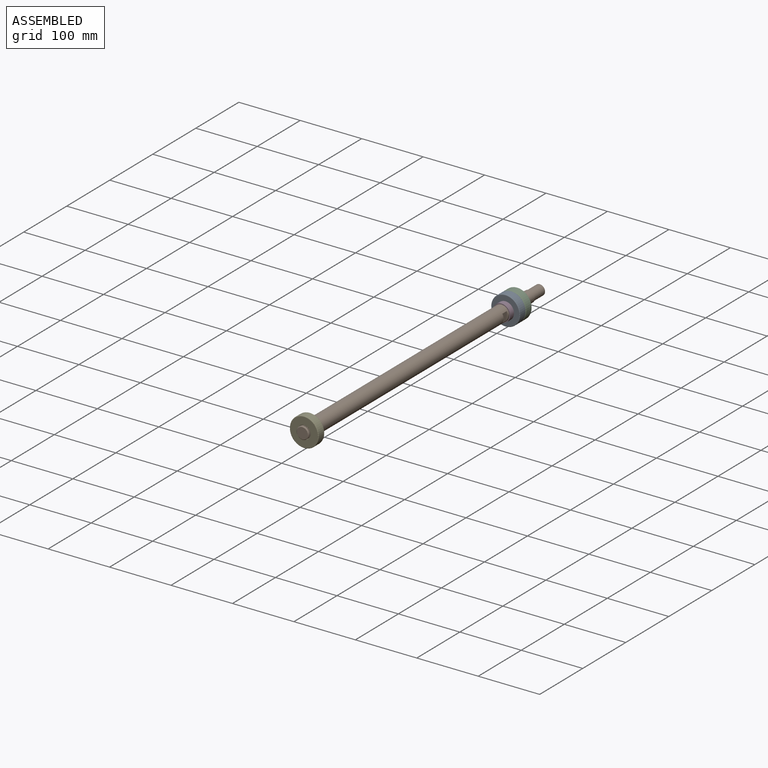
[diagram: assembled view]
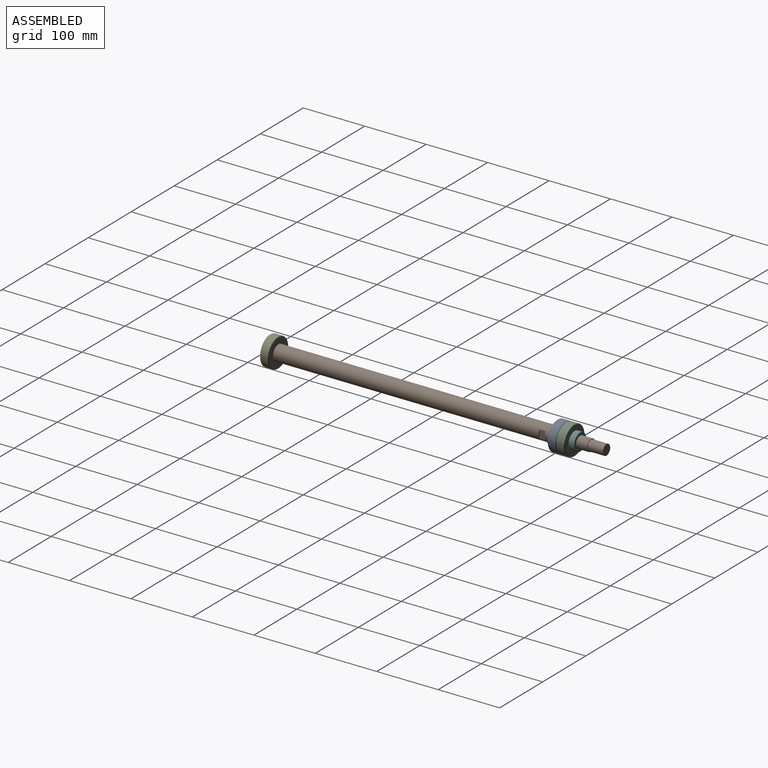
[diagram: assembled view, second angle]
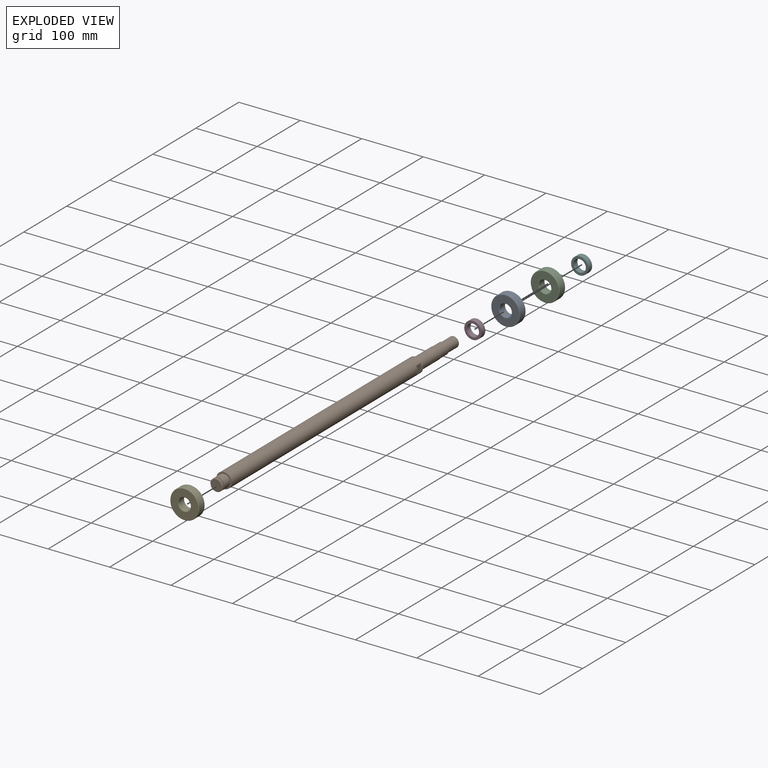
[diagram: exploded view]
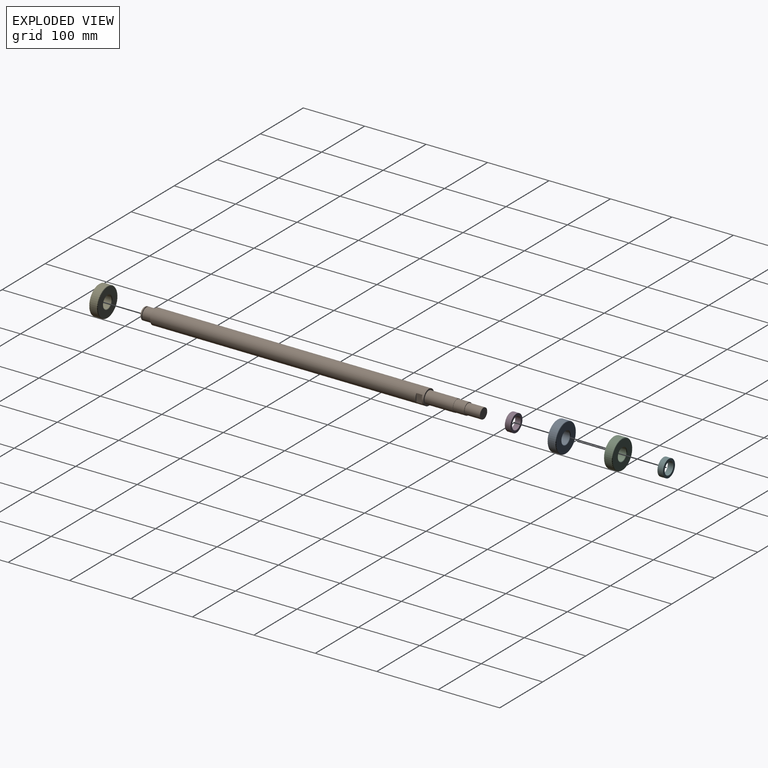
[diagram: exploded view, second angle]
ASSEMBLY  parts=6 mates=5
PART A: 8 faces, bbox 50.9x14x50.9 mm
  f0: cylinder r=10mm len=20mm, axis (0,1,0), area 754mm2, adj f4,f6
  f1: cylinder r=23.5mm len=47mm, axis (0,1,0), area 1771.9mm2, adj f5,f7
  f2: plane 45x45mm, normal (0,-1,0), area 1210.3mm2, adj f6,f7
  f3: plane 45x45mm, normal (0,1,0), area 1210.3mm2, adj f4,f5
  f4: torus R=11mm, axis (0,-1,0), area 102.3mm2, adj f0,f3
  f5: torus R=22.5mm, axis (0,-1,0), area 228.3mm2, adj f1,f3
  f6: torus R=11mm, axis (0,-1,0), area 102.3mm2, adj f0,f2
  f7: torus R=22.5mm, axis (0,-1,0), area 228.3mm2, adj f1,f2
PART B: 22 faces, bbox 25x552x25 mm
  f0: cylinder r=12.5mm len=445mm, axis (0,1,0), area 34663.5mm2, adj f7,f8,f16,f17,f18,f19,f20,f21
  f1: plane 17x17mm, normal (0,1,0), area 227mm2, adj f2
  f2: cylinder r=8.5mm len=25mm, axis (0,1,0), area 1335.2mm2, adj f1,f3
  f3: plane 19x19mm, normal (0,1,0), area 56.5mm2, adj f2,f4
  f4: cylinder r=9.5mm len=19mm, axis (0,1,0), area 1074.4mm2, adj f3,f5
  f5: plane 20x20mm, normal (0,1,0), area 30.6mm2, adj f4,f6
  f6: cylinder r=10mm len=46mm, axis (0,1,0), area 2890.3mm2, adj f5,f7
  f7: plane 25x25mm, normal (0,1,0), area 176.7mm2, adj f0,f6
  f8: plane 25x25mm, normal (0,-1,0), area 176.7mm2, adj f0,f9
  f9: cylinder r=10mm len=20mm, axis (0,1,0), area 879.6mm2, adj f8,f10
  f10: plane 20x20mm, normal (0,-1,0), area 87.2mm2, adj f9,f11
  f11: cylinder r=8.5mm len=17mm, axis (0,1,0), area 72.1mm2, adj f10,f14
  f12: cylinder r=10mm len=20mm, axis (0,1,0), area 103.7mm2, adj f14,f15
  f13: plane 18x18mm, normal (0,-1,0), area 254.5mm2, adj f15
  f14: plane 20x20mm, normal (0,1,0), area 87.2mm2, adj f11,f12
  f15: cone r=9mm half-angle=45deg, axis (0,1,0), area 84.4mm2, adj f12,f13
  f16: plane 13.56x2mm, normal (0,1,0), area 18.4mm2, adj f0,f17
  f17: plane 13.56x10mm, normal (-1,0,0), area 135.6mm2, adj f0,f16,f18
  f18: plane 13.56x2mm, normal (0,-1,0), area 18.4mm2, adj f0,f17
  f19: plane 13.56x2mm, normal (0,1,0), area 18.4mm2, adj f0,f21
  f20: plane 13.56x2mm, normal (0,-1,0), area 18.4mm2, adj f0,f21
  f21: plane 13.56x10mm, normal (1,0,0), area 135.6mm2, adj f0,f19,f20
PART C: same geometry as A
PART D: 4 faces, bbox 28x9x28 mm
  f0: cylinder r=10mm len=20mm, axis (0,1,0), area 565.5mm2, adj f2,f3
  f1: cylinder r=14mm len=28mm, axis (0,1,0), area 791.7mm2, adj f2,f3
  f2: plane 28x28mm, normal (0,-1,0), area 301.6mm2, adj f0,f1
  f3: plane 28x28mm, normal (0,1,0), area 301.6mm2, adj f0,f1
PART E: same geometry as A
PART F: same geometry as D
PLACE A t=(-192.38,123.19,-50.22)mm
PLACE B t=(-92.38,100.19,-50.22)mm
PLACE C t=(-192.38,137.19,-50.22)mm
PLACE D t=(7.62,109.19,-50.22)mm
PLACE E rot(axis=(1,0,0),180deg) t=(-192.38,-358.81,-50.22)mm
PLACE F t=(7.62,146.19,-50.22)mm
MATE fastened C.f0 <-> A.f0  axis (0,-1,0) through (-92.38,123.19,-50.22)mm
MATE fastened F.f0 <-> C.f0  axis (0,-1,0) through (-92.38,137.19,-50.22)mm
MATE fastened E.f0 <-> B.f0  axis (0,1,0) through (-92.38,-344.81,-50.22)mm
MATE fastened A.f0 <-> D.f0  axis (0,-1,0) through (-92.38,109.19,-50.22)mm
MATE fastened D.f0 <-> B.f0  axis (0,-1,0) through (-92.38,100.19,-50.22)mm
